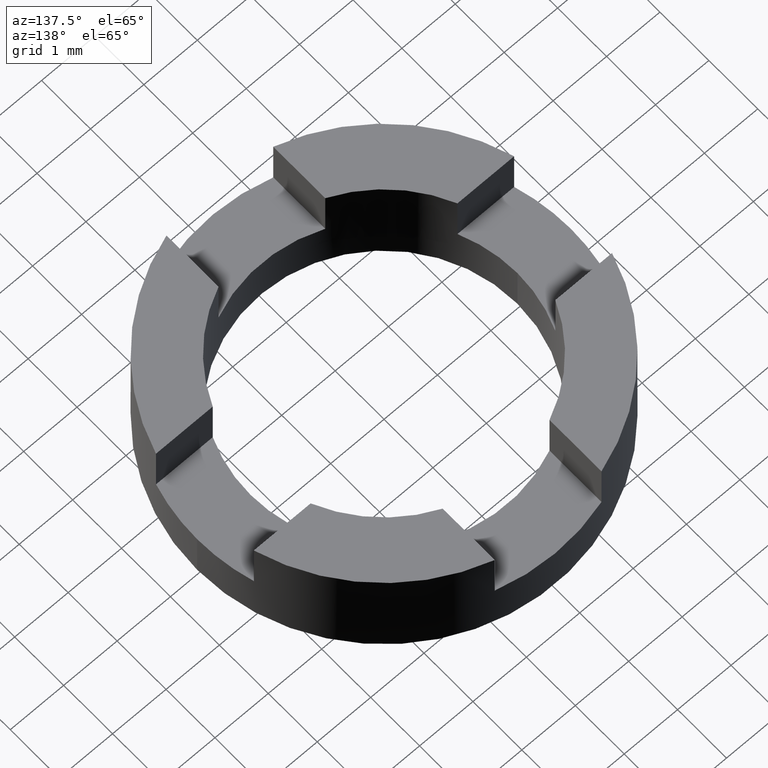
[diagram: clean part render]
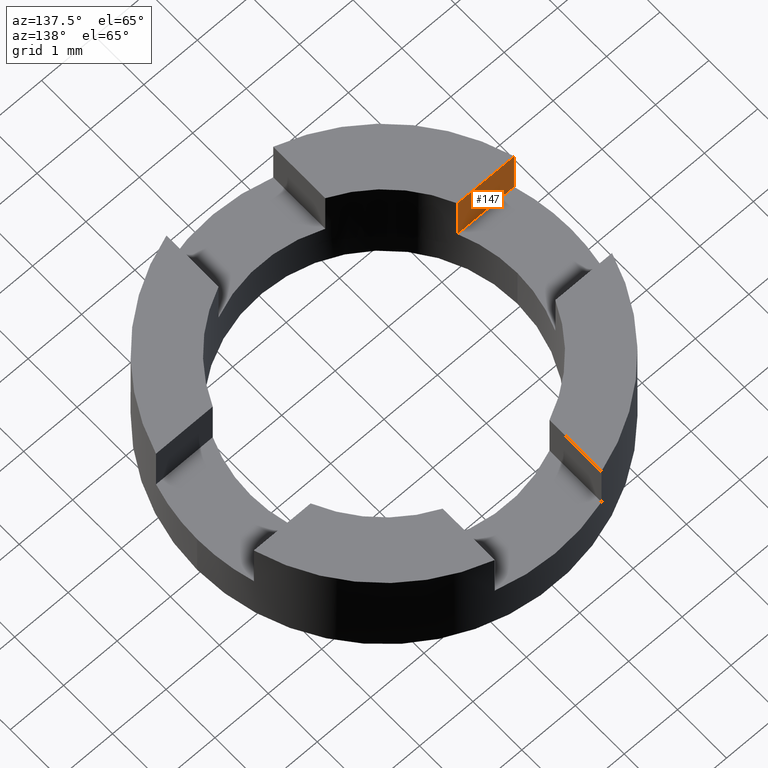
[diagram: same view with one face highlighted and labeled with its STEP entity id]
A machine part, auxiliary view. The second image highlights one B-rep face of the part: STEP entity #147.
In plain terms, the highlighted planar face has unit normal (0, -1, 0).
Its self-contained STEP definition (entity closure, byte-faithful):
#7 = EDGE_CURVE ( 'NONE', #126, #66, #235, .T. ) ;
#14 = ORIENTED_EDGE ( 'NONE', *, *, #7, .T. ) ;
#16 = VERTEX_POINT ( 'NONE', #773 ) ;
#39 = CARTESIAN_POINT ( 'NONE',  ( -3.354101966249594557, -1.000000000000301981, 1.000000000000000000 ) ) ;
#66 = VERTEX_POINT ( 'NONE', #102 ) ;
#102 = CARTESIAN_POINT ( 'NONE',  ( -2.291287847477788020, -1.000000000000301759, 1.000000000000000000 ) ) ;
#126 = VERTEX_POINT ( 'NONE', #549 ) ;
#129 = DIRECTION ( 'NONE',  ( 1.000000000000000000, 2.558646401551673950E-16, 0.000000000000000000 ) ) ;
#132 = PLANE ( 'NONE',  #268 ) ;
#147 = ADVANCED_FACE ( 'NONE', ( #670 ), #132, .F. ) ;
#149 = VECTOR ( 'NONE', #767, 1000.000000000000000 ) ;
#159 = ORIENTED_EDGE ( 'NONE', *, *, #411, .F. ) ;
#198 = LINE ( 'NONE', #437, #322 ) ;
#213 = ORIENTED_EDGE ( 'NONE', *, *, #232, .F. ) ;
#232 = EDGE_CURVE ( 'NONE', #536, #66, #198, .T. ) ;
#235 = LINE ( 'NONE', #469, #149 ) ;
#268 = AXIS2_PLACEMENT_3D ( 'NONE', #619, #324, #129 ) ;
#322 = VECTOR ( 'NONE', #370, 1000.000000000000000 ) ;
#324 = DIRECTION ( 'NONE',  ( 2.558646401551673950E-16, -1.000000000000000000, 0.000000000000000000 ) ) ;
#343 = DIRECTION ( 'NONE',  ( -0.000000000000000000, -0.000000000000000000, -1.000000000000000000 ) ) ;
#362 = LINE ( 'NONE', #587, #466 ) ;
#370 = DIRECTION ( 'NONE',  ( 1.000000000000000000, 2.558646401551673950E-16, -0.000000000000000000 ) ) ;
#411 = EDGE_CURVE ( 'NONE', #16, #536, #362, .T. ) ;
#437 = CARTESIAN_POINT ( 'NONE',  ( -1.805037895305852569, -1.000000000000301537, 1.000000000000000000 ) ) ;
#452 = EDGE_CURVE ( 'NONE', #16, #126, #772, .T. ) ;
#466 = VECTOR ( 'NONE', #343, 1000.000000000000000 ) ;
#469 = CARTESIAN_POINT ( 'NONE',  ( -2.291287847477788020, -1.000000000000301759, 2.000000000000000000 ) ) ;
#506 = EDGE_LOOP ( 'NONE', ( #578, #14, #213, #159 ) ) ;
#514 = VECTOR ( 'NONE', #535, 1000.000000000000000 ) ;
#535 = DIRECTION ( 'NONE',  ( 1.000000000000000000, 2.558646401551673950E-16, -0.000000000000000000 ) ) ;
#536 = VERTEX_POINT ( 'NONE', #39 ) ;
#549 = CARTESIAN_POINT ( 'NONE',  ( -2.291287847477788020, -1.000000000000301759, 2.000000000000000000 ) ) ;
#578 = ORIENTED_EDGE ( 'NONE', *, *, #452, .T. ) ;
#587 = CARTESIAN_POINT ( 'NONE',  ( -3.354101966249594557, -1.000000000000301981, 2.000000000000000000 ) ) ;
#619 = CARTESIAN_POINT ( 'NONE',  ( -1.805037895305852569, -1.000000000000301537, 1.000000000000000000 ) ) ;
#670 = FACE_OUTER_BOUND ( 'NONE', #506, .T. ) ;
#763 = CARTESIAN_POINT ( 'NONE',  ( -1.805037895305852569, -1.000000000000301537, 2.000000000000000000 ) ) ;
#767 = DIRECTION ( 'NONE',  ( -0.000000000000000000, -0.000000000000000000, -1.000000000000000000 ) ) ;
#772 = LINE ( 'NONE', #763, #514 ) ;
#773 = CARTESIAN_POINT ( 'NONE',  ( -3.354101966249594557, -1.000000000000301981, 2.000000000000000000 ) ) ;